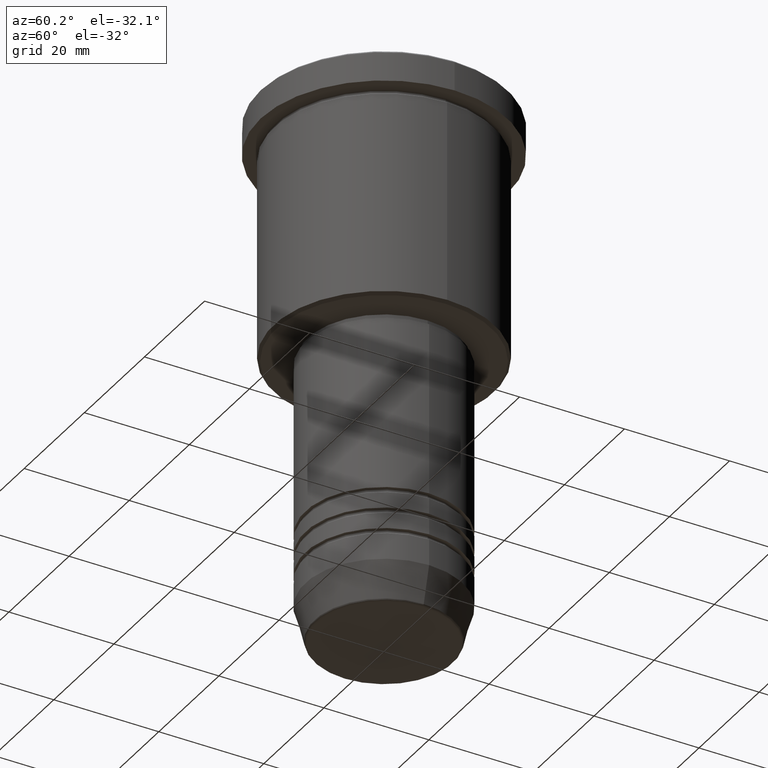
[diagram: clean part render]
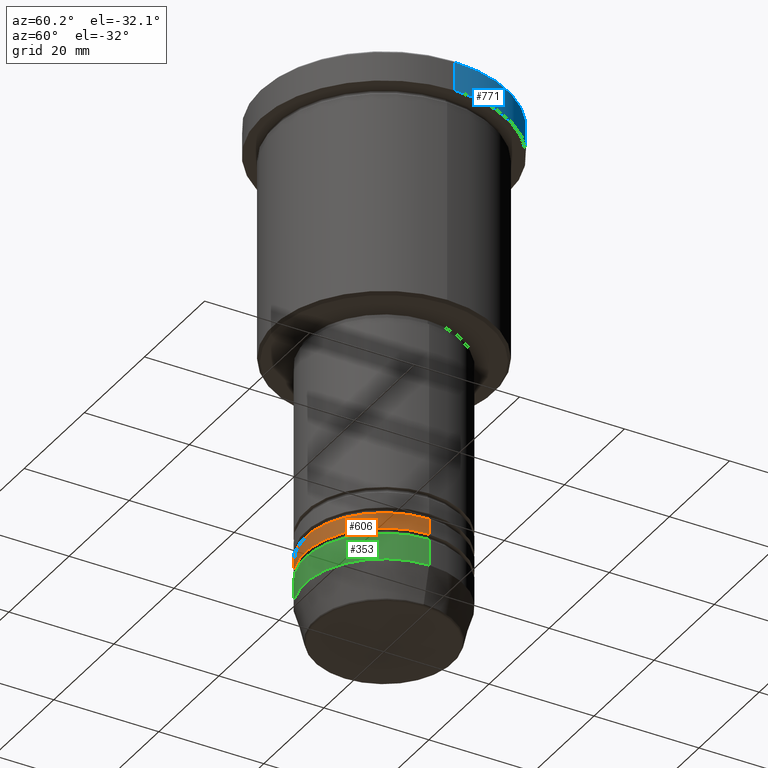
[diagram: same view with three faces highlighted in distinct colors, each labeled with its STEP entity id]
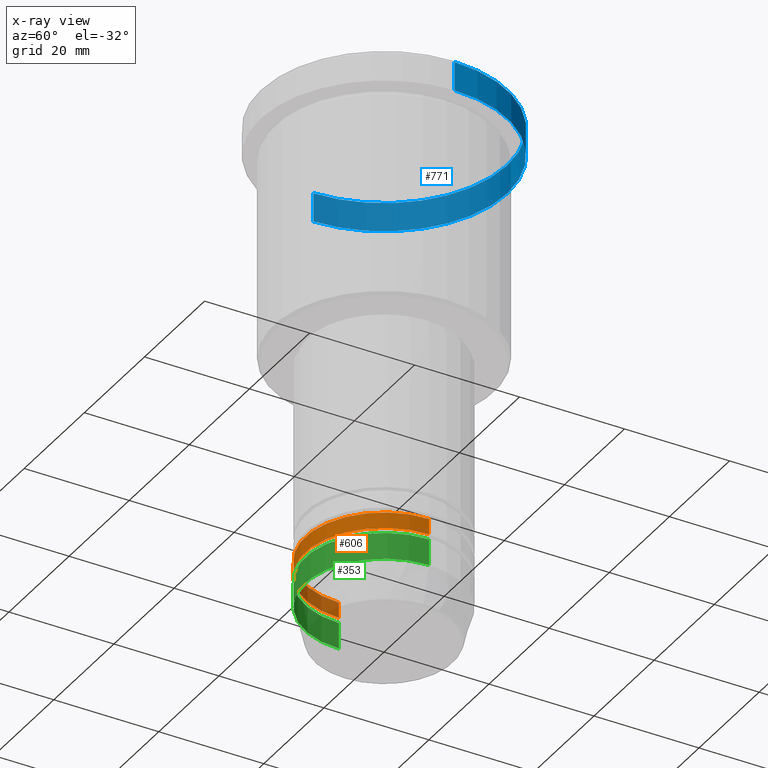
[diagram: x-ray of the same camera — body ghosted, the three highlighted faces saturated]
A machine part, auxiliary view with three faces highlighted in distinct colors.
The next image is the same camera in x-ray (body ghosted, the three faces saturated) — at least one of them is partly hidden behind the body in this view.
Their STEP definitions:

[orange] entity #606 — the highlighted cylindrical surface (partial cylindrical patch) has radius 15 mm, axis along (-0, -0, 1).
#33 = DIRECTION ( 'NONE',  ( -0.000000000000000000, -0.000000000000000000, 1.000000000000000000 ) ) ;
#41 = EDGE_CURVE ( 'NONE', #231, #811, #456, .T. ) ;
#103 = AXIS2_PLACEMENT_3D ( 'NONE', #295, #33, #1029 ) ;
#106 = CIRCLE ( 'NONE', #345, 15.00000000000000000 ) ;
#122 = EDGE_LOOP ( 'NONE', ( #690, #854, #968, #836 ) ) ;
#140 = CARTESIAN_POINT ( 'NONE',  ( -15.00000000000000000, 1.836970198721029589E-15, -87.99999999999988631 ) ) ;
#162 = EDGE_CURVE ( 'NONE', #1151, #231, #847, .T. ) ;
#201 = LINE ( 'NONE', #564, #368 ) ;
#231 = VERTEX_POINT ( 'NONE', #1035 ) ;
#264 = AXIS2_PLACEMENT_3D ( 'NONE', #409, #584, #769 ) ;
#295 = CARTESIAN_POINT ( 'NONE',  ( 0.000000000000000000, 0.000000000000000000, -87.99999999999988631 ) ) ;
#345 = AXIS2_PLACEMENT_3D ( 'NONE', #440, #887, #600 ) ;
#368 = VECTOR ( 'NONE', #1099, 1000.000000000000000 ) ;
#409 = CARTESIAN_POINT ( 'NONE',  ( 0.000000000000000000, 0.000000000000000000, 0.000000000000000000 ) ) ;
#440 = CARTESIAN_POINT ( 'NONE',  ( 0.000000000000000000, 0.000000000000000000, -84.99999999999988631 ) ) ;
#456 = LINE ( 'NONE', #1079, #711 ) ;
#472 = FACE_OUTER_BOUND ( 'NONE', #122, .T. ) ;
#564 = CARTESIAN_POINT ( 'NONE',  ( -15.00000000000000000, 1.836970198721029589E-15, 0.000000000000000000 ) ) ;
#584 = DIRECTION ( 'NONE',  ( -0.000000000000000000, -0.000000000000000000, 1.000000000000000000 ) ) ;
#600 = DIRECTION ( 'NONE',  ( 1.000000000000000000, 0.000000000000000000, 0.000000000000000000 ) ) ;
#606 = ADVANCED_FACE ( 'NONE', ( #472 ), #723, .T. ) ;
#635 = EDGE_CURVE ( 'NONE', #646, #811, #106, .T. ) ;
#646 = VERTEX_POINT ( 'NONE', #791 ) ;
#690 = ORIENTED_EDGE ( 'NONE', *, *, #1002, .F. ) ;
#711 = VECTOR ( 'NONE', #1174, 1000.000000000000000 ) ;
#723 = CYLINDRICAL_SURFACE ( 'NONE', #264, 15.00000000000000000 ) ;
#769 = DIRECTION ( 'NONE',  ( 1.000000000000000000, 0.000000000000000000, 0.000000000000000000 ) ) ;
#791 = CARTESIAN_POINT ( 'NONE',  ( -15.00000000000000000, 1.836970198721029589E-15, -84.99999999999988631 ) ) ;
#811 = VERTEX_POINT ( 'NONE', #895 ) ;
#836 = ORIENTED_EDGE ( 'NONE', *, *, #635, .F. ) ;
#847 = CIRCLE ( 'NONE', #103, 15.00000000000000000 ) ;
#854 = ORIENTED_EDGE ( 'NONE', *, *, #162, .T. ) ;
#887 = DIRECTION ( 'NONE',  ( -0.000000000000000000, -0.000000000000000000, 1.000000000000000000 ) ) ;
#895 = CARTESIAN_POINT ( 'NONE',  ( 15.00000000000000000, 0.000000000000000000, -84.99999999999988631 ) ) ;
#968 = ORIENTED_EDGE ( 'NONE', *, *, #41, .T. ) ;
#1002 = EDGE_CURVE ( 'NONE', #1151, #646, #201, .T. ) ;
#1029 = DIRECTION ( 'NONE',  ( 1.000000000000000000, 0.000000000000000000, 0.000000000000000000 ) ) ;
#1035 = CARTESIAN_POINT ( 'NONE',  ( 15.00000000000000000, 0.000000000000000000, -87.99999999999988631 ) ) ;
#1079 = CARTESIAN_POINT ( 'NONE',  ( 15.00000000000000000, 0.000000000000000000, 0.000000000000000000 ) ) ;
#1099 = DIRECTION ( 'NONE',  ( -0.000000000000000000, -0.000000000000000000, 1.000000000000000000 ) ) ;
#1151 = VERTEX_POINT ( 'NONE', #140 ) ;
#1174 = DIRECTION ( 'NONE',  ( -0.000000000000000000, -0.000000000000000000, 1.000000000000000000 ) ) ;

[blue] entity #771 — the highlighted cylindrical surface (partial cylindrical patch) has radius 23.5 mm, axis along (-0, -0, 1).
#6 = DIRECTION ( 'NONE',  ( 1.000000000000000000, 0.000000000000000000, 0.000000000000000000 ) ) ;
#24 = DIRECTION ( 'NONE',  ( -0.000000000000000000, -0.000000000000000000, 1.000000000000000000 ) ) ;
#42 = EDGE_LOOP ( 'NONE', ( #448, #291, #1038, #383 ) ) ;
#90 = DIRECTION ( 'NONE',  ( -0.000000000000000000, -0.000000000000000000, 1.000000000000000000 ) ) ;
#105 = EDGE_CURVE ( 'NONE', #1106, #488, #578, .T. ) ;
#110 = CARTESIAN_POINT ( 'NONE',  ( 0.000000000000000000, 0.000000000000000000, -5.999999999999993783 ) ) ;
#134 = CARTESIAN_POINT ( 'NONE',  ( 23.50000000000000000, 0.000000000000000000, -5.999999999999993783 ) ) ;
#174 = DIRECTION ( 'NONE',  ( 1.000000000000000000, 0.000000000000000000, 0.000000000000000000 ) ) ;
#197 = DIRECTION ( 'NONE',  ( -0.000000000000000000, -0.000000000000000000, 1.000000000000000000 ) ) ;
#219 = EDGE_CURVE ( 'NONE', #1106, #415, #1043, .T. ) ;
#220 = CARTESIAN_POINT ( 'NONE',  ( -23.50000000000000000, 2.877919977996280320E-15, 0.000000000000000000 ) ) ;
#291 = ORIENTED_EDGE ( 'NONE', *, *, #919, .T. ) ;
#371 = FACE_OUTER_BOUND ( 'NONE', #42, .T. ) ;
#376 = DIRECTION ( 'NONE',  ( 0.000000000000000000, 0.000000000000000000, -1.000000000000000000 ) ) ;
#383 = ORIENTED_EDGE ( 'NONE', *, *, #105, .F. ) ;
#384 = LINE ( 'NONE', #220, #588 ) ;
#415 = VERTEX_POINT ( 'NONE', #446 ) ;
#446 = CARTESIAN_POINT ( 'NONE',  ( -23.50000000000000000, 2.877919977996280320E-15, -5.999999999999993783 ) ) ;
#448 = ORIENTED_EDGE ( 'NONE', *, *, #219, .T. ) ;
#488 = VERTEX_POINT ( 'NONE', #716 ) ;
#578 = LINE ( 'NONE', #671, #908 ) ;
#581 = EDGE_CURVE ( 'NONE', #1102, #488, #947, .T. ) ;
#588 = VECTOR ( 'NONE', #647, 1000.000000000000000 ) ;
#596 = CARTESIAN_POINT ( 'NONE',  ( 0.000000000000000000, 0.000000000000000000, -0.5000000000000281997 ) ) ;
#647 = DIRECTION ( 'NONE',  ( -0.000000000000000000, -0.000000000000000000, 1.000000000000000000 ) ) ;
#671 = CARTESIAN_POINT ( 'NONE',  ( 23.50000000000000000, 0.000000000000000000, 0.000000000000000000 ) ) ;
#677 = DIRECTION ( 'NONE',  ( 1.000000000000000000, 0.000000000000000000, 0.000000000000000000 ) ) ;
#716 = CARTESIAN_POINT ( 'NONE',  ( 23.50000000000000000, 0.000000000000000000, -0.5000000000000281997 ) ) ;
#771 = ADVANCED_FACE ( 'NONE', ( #371 ), #1087, .T. ) ;
#810 = CARTESIAN_POINT ( 'NONE',  ( 0.000000000000000000, 0.000000000000000000, 0.000000000000000000 ) ) ;
#849 = AXIS2_PLACEMENT_3D ( 'NONE', #596, #376, #6 ) ;
#908 = VECTOR ( 'NONE', #197, 1000.000000000000000 ) ;
#919 = EDGE_CURVE ( 'NONE', #415, #1102, #384, .T. ) ;
#947 = CIRCLE ( 'NONE', #849, 23.50000000000000000 ) ;
#967 = AXIS2_PLACEMENT_3D ( 'NONE', #110, #24, #677 ) ;
#1038 = ORIENTED_EDGE ( 'NONE', *, *, #581, .T. ) ;
#1043 = CIRCLE ( 'NONE', #967, 23.50000000000000000 ) ;
#1087 = CYLINDRICAL_SURFACE ( 'NONE', #1118, 23.50000000000000000 ) ;
#1102 = VERTEX_POINT ( 'NONE', #1132 ) ;
#1106 = VERTEX_POINT ( 'NONE', #134 ) ;
#1118 = AXIS2_PLACEMENT_3D ( 'NONE', #810, #90, #174 ) ;
#1132 = CARTESIAN_POINT ( 'NONE',  ( -23.50000000000000000, 2.877919977996280320E-15, -0.5000000000000281997 ) ) ;

[green] entity #353 — the highlighted cylindrical surface (partial cylindrical patch) has radius 15 mm, axis along (-0, -0, 1).
#60 = FACE_OUTER_BOUND ( 'NONE', #972, .T. ) ;
#88 = CIRCLE ( 'NONE', #765, 15.00000000000000000 ) ;
#91 = EDGE_CURVE ( 'NONE', #492, #668, #88, .T. ) ;
#102 = EDGE_CURVE ( 'NONE', #293, #492, #755, .T. ) ;
#216 = DIRECTION ( 'NONE',  ( -0.000000000000000000, -0.000000000000000000, 1.000000000000000000 ) ) ;
#249 = VECTOR ( 'NONE', #378, 1000.000000000000000 ) ;
#293 = VERTEX_POINT ( 'NONE', #419 ) ;
#340 = DIRECTION ( 'NONE',  ( -0.000000000000000000, -0.000000000000000000, 1.000000000000000000 ) ) ;
#347 = VECTOR ( 'NONE', #1040, 1000.000000000000000 ) ;
#350 = CIRCLE ( 'NONE', #1098, 15.00000000000000000 ) ;
#353 = ADVANCED_FACE ( 'NONE', ( #60 ), #692, .T. ) ;
#378 = DIRECTION ( 'NONE',  ( -0.000000000000000000, -0.000000000000000000, 1.000000000000000000 ) ) ;
#419 = CARTESIAN_POINT ( 'NONE',  ( -15.00000000000000000, 1.836970198721029589E-15, -94.00000000000000000 ) ) ;
#478 = CARTESIAN_POINT ( 'NONE',  ( -15.00000000000000000, 1.836970198721029589E-15, 0.000000000000000000 ) ) ;
#482 = ORIENTED_EDGE ( 'NONE', *, *, #1113, .T. ) ;
#484 = CARTESIAN_POINT ( 'NONE',  ( 0.000000000000000000, 0.000000000000000000, -89.00000000000000000 ) ) ;
#492 = VERTEX_POINT ( 'NONE', #738 ) ;
#515 = VERTEX_POINT ( 'NONE', #982 ) ;
#525 = CARTESIAN_POINT ( 'NONE',  ( 0.000000000000000000, 0.000000000000000000, -94.00000000000000000 ) ) ;
#567 = EDGE_CURVE ( 'NONE', #515, #668, #772, .T. ) ;
#592 = DIRECTION ( 'NONE',  ( -0.000000000000000000, -0.000000000000000000, 1.000000000000000000 ) ) ;
#610 = ORIENTED_EDGE ( 'NONE', *, *, #102, .F. ) ;
#617 = DIRECTION ( 'NONE',  ( 1.000000000000000000, 0.000000000000000000, 0.000000000000000000 ) ) ;
#668 = VERTEX_POINT ( 'NONE', #1047 ) ;
#692 = CYLINDRICAL_SURFACE ( 'NONE', #945, 15.00000000000000000 ) ;
#738 = CARTESIAN_POINT ( 'NONE',  ( -15.00000000000000000, 1.836970198721029589E-15, -89.00000000000000000 ) ) ;
#755 = LINE ( 'NONE', #478, #249 ) ;
#765 = AXIS2_PLACEMENT_3D ( 'NONE', #484, #216, #768 ) ;
#768 = DIRECTION ( 'NONE',  ( 1.000000000000000000, 0.000000000000000000, 0.000000000000000000 ) ) ;
#772 = LINE ( 'NONE', #1130, #347 ) ;
#795 = CARTESIAN_POINT ( 'NONE',  ( 0.000000000000000000, 0.000000000000000000, 0.000000000000000000 ) ) ;
#857 = ORIENTED_EDGE ( 'NONE', *, *, #91, .F. ) ;
#925 = ORIENTED_EDGE ( 'NONE', *, *, #567, .T. ) ;
#945 = AXIS2_PLACEMENT_3D ( 'NONE', #795, #340, #617 ) ;
#963 = DIRECTION ( 'NONE',  ( 1.000000000000000000, 0.000000000000000000, 0.000000000000000000 ) ) ;
#972 = EDGE_LOOP ( 'NONE', ( #610, #482, #925, #857 ) ) ;
#982 = CARTESIAN_POINT ( 'NONE',  ( 15.00000000000000000, 0.000000000000000000, -94.00000000000000000 ) ) ;
#1040 = DIRECTION ( 'NONE',  ( -0.000000000000000000, -0.000000000000000000, 1.000000000000000000 ) ) ;
#1047 = CARTESIAN_POINT ( 'NONE',  ( 15.00000000000000000, 0.000000000000000000, -89.00000000000000000 ) ) ;
#1098 = AXIS2_PLACEMENT_3D ( 'NONE', #525, #592, #963 ) ;
#1113 = EDGE_CURVE ( 'NONE', #293, #515, #350, .T. ) ;
#1130 = CARTESIAN_POINT ( 'NONE',  ( 15.00000000000000000, 0.000000000000000000, 0.000000000000000000 ) ) ;